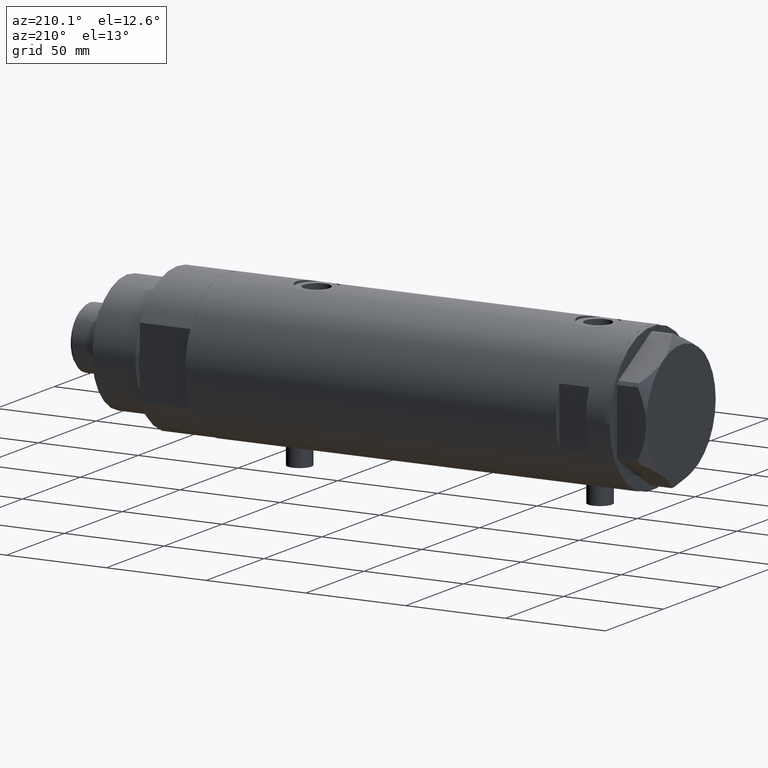
[diagram: clean part render]
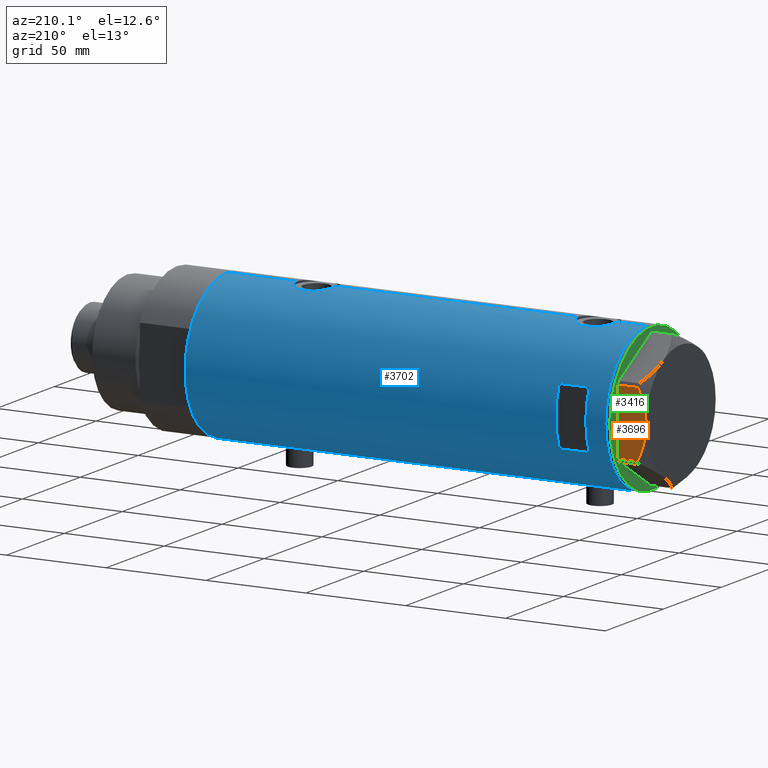
[diagram: same view with three faces highlighted in distinct colors, each labeled with its STEP entity id]
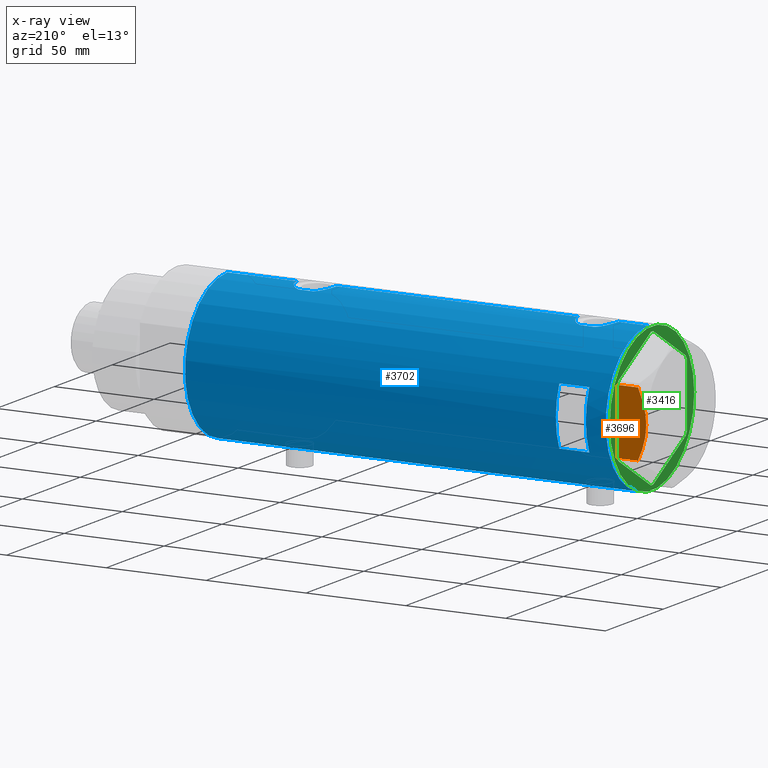
[diagram: x-ray of the same camera — body ghosted, the three highlighted faces saturated]
A machine part, auxiliary view with three faces highlighted in distinct colors.
The next image is the same camera in x-ray (body ghosted, the three faces saturated) — at least one of them is partly hidden behind the body in this view.
Their STEP definitions:

[orange] entity #3696 — the highlighted planar face has unit normal (0, -1, -0).
#174 = ORIENTED_EDGE ( 'NONE', *, *, #3466, .T. ) ;
#234 = VERTEX_POINT ( 'NONE', #631 ) ;
#309 = CARTESIAN_POINT ( 'NONE',  ( 29.99999999999998579, 2.827567415490793934, 14.37523681947611287 ) ) ;
#334 = CARTESIAN_POINT ( 'NONE',  ( 30.00000000000000000, 15.56759648729806145, 10.70591879357994003 ) ) ;
#628 = ORIENTED_EDGE ( 'NONE', *, *, #754, .T. ) ;
#631 = CARTESIAN_POINT ( 'NONE',  ( 30.00000000000000000, 9.013887592422954582E-15, 14.50000000000000000 ) ) ;
#656 = DIRECTION ( 'NONE',  ( -3.004629197474318063E-16, 1.000000000000000000, 0.000000000000000000 ) ) ;
#684 = CARTESIAN_POINT ( 'NONE',  ( 29.99999999999999645, 14.92797448277035066, 10.99622797424085796 ) ) ;
#685 = CARTESIAN_POINT ( 'NONE',  ( 30.00000000000000000, -5.593935073701695515, 14.09487059093540751 ) ) ;
#754 = EDGE_CURVE ( 'NONE', #1558, #2971, #3715, .T. ) ;
#775 = CARTESIAN_POINT ( 'NONE',  ( 30.00000000000000355, -16.20050807568876294, 0.000000000000000000 ) ) ;
#786 = VERTEX_POINT ( 'NONE', #3413 ) ;
#894 = CARTESIAN_POINT ( 'NONE',  ( 30.00000000000000355, -13.64854889245357761, 11.56384586935411107 ) ) ;
#1023 = CARTESIAN_POINT ( 'NONE',  ( 29.99999999999998579, 11.00230860792645871, 12.56933207488872206 ) ) ;
#1311 = CARTESIAN_POINT ( 'NONE',  ( 30.00000000000000355, -10.99748736931233672, 12.55407623651775140 ) ) ;
#1364 = CARTESIAN_POINT ( 'NONE',  ( 29.99999999999999645, 6.973771051792334141, 13.72753822183687866 ) ) ;
#1515 = EDGE_CURVE ( 'NONE', #234, #3805, #3283, .T. ) ;
#1517 = CARTESIAN_POINT ( 'NONE',  ( 30.00000000000000355, -17.32050807568877460, 14.50000000000000000 ) ) ;
#1558 = VERTEX_POINT ( 'NONE', #775 ) ;
#1679 = CARTESIAN_POINT ( 'NONE',  ( 29.99999999999999645, 3.526431665117132574, 14.30125973663612982 ) ) ;
#1699 = EDGE_CURVE ( 'NONE', #786, #234, #3826, .T. ) ;
#1701 = CARTESIAN_POINT ( 'NONE',  ( 29.99999999999999289, 16.20050807568875229, 10.40518423703605322 ) ) ;
#1740 = LINE ( 'NONE', #4116, #2970 ) ;
#1854 = LINE ( 'NONE', #3436, #3645 ) ;
#2032 = CARTESIAN_POINT ( 'NONE',  ( 30.00000000000000000, 1.418661615092703387, 14.47469700449902952 ) ) ;
#2036 = CARTESIAN_POINT ( 'NONE',  ( 30.00000000000000000, -2.830925467268480933, 14.50000000000000355 ) ) ;
#2162 = EDGE_CURVE ( 'NONE', #786, #1558, #1740, .T. ) ;
#2386 = CARTESIAN_POINT ( 'NONE',  ( 29.99999999999999289, 12.97715359595205520, 11.81918444541430979 ) ) ;
#2450 = CARTESIAN_POINT ( 'NONE',  ( 29.99999999999999289, 16.20050807568875229, 10.40518423703605322 ) ) ;
#2461 = CARTESIAN_POINT ( 'NONE',  ( 29.99999999999999289, 16.20050807568875584, 0.000000000000000000 ) ) ;
#2663 = CARTESIAN_POINT ( 'NONE',  ( 29.99999999999999289, -9.655259153795981319, 12.99093232113973251 ) ) ;
#2717 = ORIENTED_EDGE ( 'NONE', *, *, #2162, .T. ) ;
#2752 = ORIENTED_EDGE ( 'NONE', *, *, #1515, .F. ) ;
#2924 = DIRECTION ( 'NONE',  ( 0.000000000000000000, 0.000000000000000000, 1.000000000000000000 ) ) ;
#2970 = VECTOR ( 'NONE', #3123, 1000.000000000000000 ) ;
#2971 = VERTEX_POINT ( 'NONE', #2461 ) ;
#2997 = CARTESIAN_POINT ( 'NONE',  ( 30.00000000000000355, -16.20050807568876650, 10.40518423703603368 ) ) ;
#3022 = CARTESIAN_POINT ( 'NONE',  ( 30.00000000000000355, -17.32050807568877460, 0.000000000000000000 ) ) ;
#3055 = CARTESIAN_POINT ( 'NONE',  ( 29.99999999999998934, 5.607365453019633961, 14.01139032121648320 ) ) ;
#3115 = FACE_OUTER_BOUND ( 'NONE', #4475, .T. ) ;
#3123 = DIRECTION ( 'NONE',  ( 0.000000000000000000, 0.000000000000000000, -1.000000000000000000 ) ) ;
#3174 = PLANE ( 'NONE',  #3356 ) ;
#3283 = B_SPLINE_CURVE_WITH_KNOTS ( 'NONE', 3,
 ( #3403, #4441, #2032, #309, #1679, #3055, #1364, #4110, #1023, #2386, #3767, #684, #334, #1701 ),
 .UNSPECIFIED., .F., .F.,
 ( 4, 2, 2, 2, 2, 2, 4 ),
 ( 0.06183748343640974032, 0.06393495742991756048, 0.06603243142342538063, 0.07022737941044103482, 0.07442232739745667514, 0.07651980139096450917, 0.07861727538447232932 ),
 .UNSPECIFIED. ) ;
#3356 = AXIS2_PLACEMENT_3D ( 'NONE', #1517, #3771, #3386 ) ;
#3386 = DIRECTION ( 'NONE',  ( 3.004629197474318556E-16, -1.000000000000000000, 0.000000000000000000 ) ) ;
#3403 = CARTESIAN_POINT ( 'NONE',  ( 30.00000000000000000, 9.013887592422954582E-15, 14.50000000000000000 ) ) ;
#3413 = CARTESIAN_POINT ( 'NONE',  ( 30.00000000000000355, -16.20050807568876650, 10.40518423703603368 ) ) ;
#3424 = CARTESIAN_POINT ( 'NONE',  ( 30.00000000000000000, 9.013887592422954582E-15, 14.50000000000000000 ) ) ;
#3436 = CARTESIAN_POINT ( 'NONE',  ( 29.99999999999999289, 16.20050807568875584, 14.50000000000000000 ) ) ;
#3455 = ORIENTED_EDGE ( 'NONE', *, *, #1699, .F. ) ;
#3466 = EDGE_CURVE ( 'NONE', #2971, #3805, #1854, .T. ) ;
#3645 = VECTOR ( 'NONE', #2924, 1000.000000000000000 ) ;
#3696 = ADVANCED_FACE ( 'NONE', ( #3115 ), #3174, .F. ) ;
#3715 = LINE ( 'NONE', #3022, #3939 ) ;
#3767 = CARTESIAN_POINT ( 'NONE',  ( 29.99999999999999289, 13.63320717147166761, 11.55272916346385692 ) ) ;
#3768 = CARTESIAN_POINT ( 'NONE',  ( 29.99999999999999645, -8.981118657900115210, 13.19130745470828892 ) ) ;
#3771 = DIRECTION ( 'NONE',  ( -1.000000000000000000, -3.004629197474318556E-16, 0.000000000000000000 ) ) ;
#3805 = VERTEX_POINT ( 'NONE', #2450 ) ;
#3826 = B_SPLINE_CURVE_WITH_KNOTS ( 'NONE', 3,
 ( #2997, #4383, #894, #4113, #1311, #2663, #3768, #685, #2036, #3424 ),
 .UNSPECIFIED., .F., .F.,
 ( 4, 2, 2, 2, 4 ),
 ( 0.04501738275285961655, 0.04922240792374714402, 0.05132492050919090776, 0.05342743309463467843, 0.06183748343640974032 ),
 .UNSPECIFIED. ) ;
#3939 = VECTOR ( 'NONE', #656, 1000.000000000000000 ) ;
#4110 = CARTESIAN_POINT ( 'NONE',  ( 29.99999999999998579, 9.671229349009047738, 13.00645148086949554 ) ) ;
#4113 = CARTESIAN_POINT ( 'NONE',  ( 29.99999999999999645, -11.66725319103953495, 12.31690447555093115 ) ) ;
#4116 = CARTESIAN_POINT ( 'NONE',  ( 30.00000000000000355, -16.20050807568876294, 14.50000000000000000 ) ) ;
#4383 = CARTESIAN_POINT ( 'NONE',  ( 29.99999999999999645, -14.93680064777130845, 11.00564802993686619 ) ) ;
#4441 = CARTESIAN_POINT ( 'NONE',  ( 29.99999999999999645, 0.7060353153488403422, 14.50000000000000355 ) ) ;
#4475 = EDGE_LOOP ( 'NONE', ( #3455, #2717, #628, #174, #2752 ) ) ;

[blue] entity #3702 — the highlighted cylindrical surface (partial cylindrical patch) has radius 36.5 mm, axis along (-1, -0, 0).
#17 = VECTOR ( 'NONE', #2982, 1000.000000000000000 ) ;
#53 = CARTESIAN_POINT ( 'NONE',  ( 36.50000000000000000, 0.000000000000000000, 70.40000000000000568 ) ) ;
#66 = CARTESIAN_POINT ( 'NONE',  ( -36.49297130294515057, 0.8204796224394284021, -62.89068307782267908 ) ) ;
#70 = CARTESIAN_POINT ( 'NONE',  ( 36.50000000000000000, 0.000000000000000000, -70.59999999999999432 ) ) ;
#71 = ORIENTED_EDGE ( 'NONE', *, *, #3156, .T. ) ;
#86 = CARTESIAN_POINT ( 'NONE',  ( -36.40902375114221456, 2.582415566883933256, 75.70478308530312006 ) ) ;
#93 = CARTESIAN_POINT ( 'NONE',  ( 35.40502660484482789, 8.876998817796907915, -65.23098724071236632 ) ) ;
#98 = CARTESIAN_POINT ( 'NONE',  ( 35.72794581931695745, 7.469526493268201506, -53.94660203271736520 ) ) ;
#103 = CARTESIAN_POINT ( 'NONE',  ( 35.29999999999999716, 9.282241108697835585, -105.4000000000000057 ) ) ;
#119 = CARTESIAN_POINT ( 'NONE',  ( 36.50000000000000000, 1.005842003469122004, -70.59999999999999432 ) ) ;
#124 = VERTEX_POINT ( 'NONE', #2236 ) ;
#125 = CARTESIAN_POINT ( 'NONE',  ( 36.50000000000000000, 4.344614706140975428E-19, 90.39999999999999147 ) ) ;
#132 = CARTESIAN_POINT ( 'NONE',  ( -36.44628644024910358, 2.015372769639943495, 75.46971871986416147 ) ) ;
#136 = VERTEX_POINT ( 'NONE', #2307 ) ;
#166 = CARTESIAN_POINT ( 'NONE',  ( 36.26917563968161318, 4.104523505324172206, -69.72215988367474893 ) ) ;
#173 = CARTESIAN_POINT ( 'NONE',  ( 36.50000000000000000, 0.000000000000000000, -105.4000000000000057 ) ) ;
#181 = VERTEX_POINT ( 'NONE', #1266 ) ;
#206 = CARTESIAN_POINT ( 'NONE',  ( 36.41717583764487642, 2.469534783404760514, 90.09348011175671900 ) ) ;
#208 = CARTESIAN_POINT ( 'NONE',  ( -36.05296344941216802, 5.695624845616830356, -71.68154856536759212 ) ) ;
#225 = CARTESIAN_POINT ( 'NONE',  ( -14.49137674618942562, 33.50000000000000000, 80.40000000000003411 ) ) ;
#232 = CARTESIAN_POINT ( 'NONE',  ( -35.96094343308264740, 6.249843792257632202, -68.68912889655432252 ) ) ;
#241 = DIRECTION ( 'NONE',  ( 0.000000000000000000, 4.625929269271492422E-15, 1.000000000000000000 ) ) ;
#253 = CIRCLE ( 'NONE', #2188, 36.50000000000000000 ) ;
#267 = CARTESIAN_POINT ( 'NONE',  ( -36.50000000000000000, 4.469960493350315609E-15, -75.35000000000000853 ) ) ;
#333 = B_SPLINE_CURVE_WITH_KNOTS ( 'NONE', 3,
 ( #781, #3164, #66, #1457, #4220, #4333, #883, #1275, #3314, #2242, #4375, #1972, #2633, #4013, #536, #4308, #3984, #2585, #908, #570, #935, #232, #1616, #1641, #1231, #1933, #208, #978, #2294, #1322, #3677, #597, #2984, #1302, #960, #2316, #3699, #4058, #2677, #2335, #617, #3359, #267 ),
 .UNSPECIFIED., .F., .F.,
 ( 4, 2, 2, 2, 2, 2, 2, 2, 1, 2, 2, 2, 2, 2, 2, 2, 2, 2, 2, 2, 2, 4 ),
 ( 5.683504623013911987E-19, 0.001223527801214120518, 0.001835291701821175356, 0.002447055602428230194, 0.003670583403642342039, 0.004894111204856454317, 0.006117639006070565294, 0.006729402906677638130, 0.007341166807284710966, 0.007952930707891782067, 0.008564694608498856637, 0.009788222409713002309, 0.01101175021092714625, 0.01223527801214129365, 0.01284704191274838730, 0.01345880581335547749, 0.01468233361456966132, 0.01590586141578384169, 0.01651762531639093534, 0.01712938921699802552, 0.01835291701821222324, 0.01957644481942642095 ),
 .UNSPECIFIED. ) ;
#341 = CYLINDRICAL_SURFACE ( 'NONE', #910, 36.50000000000000000 ) ;
#414 = CARTESIAN_POINT ( 'NONE',  ( 36.50000000000000000, 0.000000000000000000, -105.4000000000000057 ) ) ;
#415 = CARTESIAN_POINT ( 'NONE',  ( 36.26917563968160607, 4.104523505324173982, 71.27784011632526529 ) ) ;
#417 = EDGE_CURVE ( 'NONE', #2922, #1665, #3676, .T. ) ;
#420 = ORIENTED_EDGE ( 'NONE', *, *, #901, .F. ) ;
#426 = CARTESIAN_POINT ( 'NONE',  ( 35.72860827204724643, 7.471059959301278752, -67.26525150474407155 ) ) ;
#428 = CARTESIAN_POINT ( 'NONE',  ( 35.29999999999999716, 9.282241108697832033, -56.87978495245235422 ) ) ;
#438 = CARTESIAN_POINT ( 'NONE',  ( -36.35033317675381426, 3.306376218664582645, 76.09229280583950583 ) ) ;
#439 = EDGE_CURVE ( 'NONE', #2019, #2791, #3016, .T. ) ;
#469 = CARTESIAN_POINT ( 'NONE',  ( 36.29420020483473053, 3.877527130731367233, -69.82098974400294367 ) ) ;
#485 = B_SPLINE_CURVE_WITH_KNOTS ( 'NONE', 3,
 ( #428, #2071, #1731, #1794, #98, #746, #2789, #1417, #3170, #4232, #1468, #3153, #1160, #4207, #3883, #4251, #806, #2112, #2768, #3526 ),
 .UNSPECIFIED., .F., .F.,
 ( 4, 2, 2, 2, 2, 2, 2, 2, 2, 4 ),
 ( 1.551583845779545699E-17, 0.002977391289382848218, 0.003721739111728565152, 0.004466086934074281652, 0.005954782578765715519, 0.007443478223457148518, 0.008932173868148582385, 0.009676521690494299319, 0.01042086951284001625, 0.01190956515753145185 ),
 .UNSPECIFIED. ) ;
#495 = CARTESIAN_POINT ( 'NONE',  ( -36.30200038006935870, 3.811959488093746184, 86.36972104836003439 ) ) ;
#518 = CARTESIAN_POINT ( 'NONE',  ( -36.06675137892953131, 5.607935153446980792, 84.16681826008758094 ) ) ;
#523 = VERTEX_POINT ( 'NONE', #1445 ) ;
#529 = ORIENTED_EDGE ( 'NONE', *, *, #3103, .T. ) ;
#536 = CARTESIAN_POINT ( 'NONE',  ( -36.09617453667821252, 5.415318599347968664, -65.97293357327090746 ) ) ;
#558 = EDGE_CURVE ( 'NONE', #673, #3673, #333, .T. ) ;
#566 = CARTESIAN_POINT ( 'NONE',  ( 36.34264078466111414, 3.418717136061404371, 89.81049034040754009 ) ) ;
#570 = CARTESIAN_POINT ( 'NONE',  ( -35.98846897517729815, 6.089479646546500646, -67.67765108453481560 ) ) ;
#577 = CARTESIAN_POINT ( 'NONE',  ( -35.99530513653993324, 6.049346314076207598, 79.77667416964166591 ) ) ;
#593 = CARTESIAN_POINT ( 'NONE',  ( 35.72794581931695035, 7.469526493268199729, 87.05339796728263480 ) ) ;
#597 = CARTESIAN_POINT ( 'NONE',  ( -36.19597718496778072, 4.710322426433910969, -73.22851610762013763 ) ) ;
#604 = VERTEX_POINT ( 'NONE', #950 ) ;
#617 = CARTESIAN_POINT ( 'NONE',  ( -36.49292802938587954, 0.8230716655928912440, -75.30906938753517466 ) ) ;
#623 = ORIENTED_EDGE ( 'NONE', *, *, #2219, .F. ) ;
#639 = CARTESIAN_POINT ( 'NONE',  ( 36.50000000000000000, 0.000000000000000000, -70.59999999999999432 ) ) ;
#655 = DIRECTION ( 'NONE',  ( 1.000000000000000000, 1.776356839400250465E-15, 0.000000000000000000 ) ) ;
#673 = VERTEX_POINT ( 'NONE', #3666 ) ;
#702 = EDGE_CURVE ( 'NONE', #2662, #2922, #1519, .T. ) ;
#733 = DIRECTION ( 'NONE',  ( 0.000000000000000000, 0.000000000000000000, 1.000000000000000000 ) ) ;
#736 = CARTESIAN_POINT ( 'NONE',  ( -36.19597718496777361, 4.710322426433901200, 77.27148389237981974 ) ) ;
#746 = CARTESIAN_POINT ( 'NONE',  ( 35.79715675463678792, 7.130463293899339305, -53.58444415894006596 ) ) ;
#774 = DIRECTION ( 'NONE',  ( 0.000000000000000000, 0.000000000000000000, 1.000000000000000000 ) ) ;
#781 = CARTESIAN_POINT ( 'NONE',  ( -36.50000000000000000, -5.849986204104554638E-16, -62.85000000000000142 ) ) ;
#801 = CARTESIAN_POINT ( 'NONE',  ( 36.36225053217121683, 3.177096004138046048, -70.08516024475980544 ) ) ;
#806 = CARTESIAN_POINT ( 'NONE',  ( 36.45954139109320380, 1.735915671103592794, -50.74863218852989633 ) ) ;
#838 = CARTESIAN_POINT ( 'NONE',  ( 36.49999999999999289, 0.4961820988516178477, 90.39999999999997726 ) ) ;
#843 = CARTESIAN_POINT ( 'NONE',  ( 35.34894515018992678, 9.096104616284845790, -64.78464083466536749 ) ) ;
#851 = ORIENTED_EDGE ( 'NONE', *, *, #4268, .F. ) ;
#883 = CARTESIAN_POINT ( 'NONE',  ( -36.43371204571226230, 2.206934156026287397, -63.24902718329002482 ) ) ;
#901 = EDGE_CURVE ( 'NONE', #604, #1313, #485, .T. ) ;
#908 = CARTESIAN_POINT ( 'NONE',  ( -35.99700617875953412, 6.038972911021587286, -67.47666814201679131 ) ) ;
#910 = AXIS2_PLACEMENT_3D ( 'NONE', #3363, #4418, #1708 ) ;
#929 = CARTESIAN_POINT ( 'NONE',  ( 35.52347503888661606, 8.410566959990463332, 85.89953967259343415 ) ) ;
#935 = CARTESIAN_POINT ( 'NONE',  ( -35.96793274302674348, 6.210029014836887740, -68.28305762320682959 ) ) ;
#950 = CARTESIAN_POINT ( 'NONE',  ( 35.29999999999999716, 9.282241108697832033, -56.87978495245235422 ) ) ;
#960 = CARTESIAN_POINT ( 'NONE',  ( -36.35033317675379294, 3.306376218664579980, -74.40770719416053680 ) ) ;
#978 = CARTESIAN_POINT ( 'NONE',  ( -36.06690560274406465, 5.606949625760679901, -71.86885923958934086 ) ) ;
#986 = CARTESIAN_POINT ( 'NONE',  ( -36.03936508729894683, 5.782103729777506196, 83.79870532603797528 ) ) ;
#1031 = EDGE_LOOP ( 'NONE', ( #623, #4368, #2096, #851 ) ) ;
#1046 = CARTESIAN_POINT ( 'NONE',  ( 36.18948008481302026, 4.772042575486197258, 71.59822368756843503 ) ) ;
#1089 = LINE ( 'NONE', #414, #3554 ) ;
#1101 = DIRECTION ( 'NONE',  ( -0.000000000000000000, -0.000000000000000000, -1.000000000000000000 ) ) ;
#1118 = ORIENTED_EDGE ( 'NONE', *, *, #439, .F. ) ;
#1123 = B_SPLINE_CURVE_WITH_KNOTS ( 'NONE', 3,
 ( #3147, #1403, #2465, #2737, #2124, #3513, #415, #1046, #1454, #2880, #4327, #3911, #2511, #4258, #1170, #2189, #3580, #2215 ),
 .UNSPECIFIED., .F., .F.,
 ( 4, 2, 2, 2, 2, 2, 2, 2, 4 ),
 ( -8.673617379884035472E-19, 0.002973648994175663411, 0.003717061242719586420, 0.004460473491263509428, 0.005947297988351372793, 0.007434122485439235289, 0.008920946982527096919, 0.01040777147961496202, 0.01189459597670282365 ),
 .UNSPECIFIED. ) ;
#1152 = LINE ( 'NONE', #2842, #1967 ) ;
#1157 = CARTESIAN_POINT ( 'NONE',  ( -36.39638105034455862, 2.774378062517170562, 87.01543332699102962 ) ) ;
#1160 = CARTESIAN_POINT ( 'NONE',  ( 36.34264078466110703, 3.418717136061401263, -51.18950965959248833 ) ) ;
#1170 = CARTESIAN_POINT ( 'NONE',  ( 35.52737867031127195, 8.373910777960903218, 74.91139643282933491 ) ) ;
#1173 = DIRECTION ( 'NONE',  ( -0.000000000000000000, -0.000000000000000000, -1.000000000000000000 ) ) ;
#1183 = CARTESIAN_POINT ( 'NONE',  ( -36.50000000000000000, 1.407447864834978200E-15, 87.65000000000000568 ) ) ;
#1190 = CARTESIAN_POINT ( 'NONE',  ( -36.50000000000000000, 1.407447864834978200E-15, 87.65000000000000568 ) ) ;
#1205 = CARTESIAN_POINT ( 'NONE',  ( -36.49292802938586533, 0.8230716655928910219, 75.19093061246483956 ) ) ;
#1228 = DIRECTION ( 'NONE',  ( 0.000000000000000000, 0.000000000000000000, 1.000000000000000000 ) ) ;
#1231 = CARTESIAN_POINT ( 'NONE',  ( -35.99530513653992614, 6.049346314076206710, -70.72332583035836251 ) ) ;
#1250 = ORIENTED_EDGE ( 'NONE', *, *, #3829, .F. ) ;
#1266 = CARTESIAN_POINT ( 'NONE',  ( -36.50000000000000000, 4.469960816887837641E-15, -105.4000000000000057 ) ) ;
#1273 = CARTESIAN_POINT ( 'NONE',  ( 35.39804469700249001, 8.909380959553013568, 85.05053164482841055 ) ) ;
#1275 = CARTESIAN_POINT ( 'NONE',  ( -36.39638105034455151, 2.774378062517169674, -63.48456667300896328 ) ) ;
#1284 = CARTESIAN_POINT ( 'NONE',  ( -36.50000000000000000, 4.469960493350315609E-15, -75.35000000000000853 ) ) ;
#1286 = VECTOR ( 'NONE', #2151, 1000.000000000000000 ) ;
#1291 = ORIENTED_EDGE ( 'NONE', *, *, #3726, .F. ) ;
#1302 = CARTESIAN_POINT ( 'NONE',  ( -36.30181775639987052, 3.813582387016787312, -74.06836057574437859 ) ) ;
#1313 = VERTEX_POINT ( 'NONE', #3922 ) ;
#1322 = CARTESIAN_POINT ( 'NONE',  ( -36.11206433103226487, 5.308658295084045520, -72.40484648040975912 ) ) ;
#1395 = DIRECTION ( 'NONE',  ( 1.000000000000000000, 0.000000000000000000, 0.000000000000000000 ) ) ;
#1396 = VERTEX_POINT ( 'NONE', #2993 ) ;
#1403 = CARTESIAN_POINT ( 'NONE',  ( 36.49999999999999289, 1.005842003469121781, 70.40000000000001990 ) ) ;
#1409 = LINE ( 'NONE', #2489, #1286 ) ;
#1415 = ORIENTED_EDGE ( 'NONE', *, *, #1542, .F. ) ;
#1417 = CARTESIAN_POINT ( 'NONE',  ( 35.93435287561197811, 6.411571491280765756, -52.91011355077158385 ) ) ;
#1445 = CARTESIAN_POINT ( 'NONE',  ( 14.49137674618942384, 33.50000000000000000, 80.40000000000003411 ) ) ;
#1454 = CARTESIAN_POINT ( 'NONE',  ( 36.13018480315371761, 5.199168368309160293, 71.84353501791950691 ) ) ;
#1457 = CARTESIAN_POINT ( 'NONE',  ( -36.47290054070997201, 1.420408912806972124, -63.01013018339985194 ) ) ;
#1463 = CARTESIAN_POINT ( 'NONE',  ( 36.34070350304396868, 3.414301401755541754, -70.00236217375906733 ) ) ;
#1468 = CARTESIAN_POINT ( 'NONE',  ( 36.18937351723702989, 4.773052864917637805, -51.79864006881157934 ) ) ;
#1474 = CIRCLE ( 'NONE', #3929, 36.50000000000000000 ) ;
#1475 = DIRECTION ( 'NONE',  ( 0.000000000000000000, 0.000000000000000000, 1.000000000000000000 ) ) ;
#1503 = LINE ( 'NONE', #2532, #2416 ) ;
#1519 = LINE ( 'NONE', #173, #4014 ) ;
#1524 = LINE ( 'NONE', #2912, #4285 ) ;
#1527 = CARTESIAN_POINT ( 'NONE',  ( -36.46598788992681506, 1.625721481788709344, 75.35127953286161073 ) ) ;
#1542 = EDGE_CURVE ( 'NONE', #1313, #3014, #1089, .T. ) ;
#1559 = CARTESIAN_POINT ( 'NONE',  ( 36.13018480315371761, 5.199168368309158517, -69.15646498208050730 ) ) ;
#1566 = DIRECTION ( 'NONE',  ( 0.000000000000000000, 0.000000000000000000, 1.000000000000000000 ) ) ;
#1584 = CARTESIAN_POINT ( 'NONE',  ( -35.96793274302675059, 6.210029014836887740, 82.21694237679317041 ) ) ;
#1594 = CARTESIAN_POINT ( 'NONE',  ( 35.29999999999999716, 9.282241108697832033, 84.12021504754764578 ) ) ;
#1597 = CARTESIAN_POINT ( 'NONE',  ( 36.50000000000000000, 4.344614706140975428E-19, 90.39999999999999147 ) ) ;
#1616 = CARTESIAN_POINT ( 'NONE',  ( -35.96088929326157313, 6.250155299092686967, -69.50610494763246550 ) ) ;
#1641 = CARTESIAN_POINT ( 'NONE',  ( -35.96805604460922012, 6.209309709790233889, -69.92112758268173422 ) ) ;
#1643 = DIRECTION ( 'NONE',  ( -0.000000000000000000, -0.000000000000000000, -1.000000000000000000 ) ) ;
#1646 = CARTESIAN_POINT ( 'NONE',  ( -36.05296344941213960, 5.695624845616829468, 78.81845143463239367 ) ) ;
#1665 = VERTEX_POINT ( 'NONE', #3101 ) ;
#1708 = DIRECTION ( 'NONE',  ( 1.000000000000000000, 0.000000000000000000, 0.000000000000000000 ) ) ;
#1725 = ORIENTED_EDGE ( 'NONE', *, *, #4222, .T. ) ;
#1731 = CARTESIAN_POINT ( 'NONE',  ( 35.52347503888660896, 8.410566959990461555, -55.10046032740658006 ) ) ;
#1747 = EDGE_CURVE ( 'NONE', #604, #1665, #2161, .T. ) ;
#1782 = DIRECTION ( 'NONE',  ( 1.000000000000000000, 0.000000000000000000, 0.000000000000000000 ) ) ;
#1791 = CARTESIAN_POINT ( 'NONE',  ( -36.47290054070997911, 1.420408912806973678, 87.48986981660016227 ) ) ;
#1794 = CARTESIAN_POINT ( 'NONE',  ( 35.69321149401849880, 7.633476302278300096, -54.13536927833557399 ) ) ;
#1806 = CARTESIAN_POINT ( 'NONE',  ( -36.39522946636253664, 2.769519034821243508, 75.79336076268727140 ) ) ;
#1812 = CARTESIAN_POINT ( 'NONE',  ( 35.52737867031126484, 8.373910777960910323, -66.08860356717067930 ) ) ;
#1827 = DIRECTION ( 'NONE',  ( 0.000000000000000000, 0.000000000000000000, 1.000000000000000000 ) ) ;
#1840 = CARTESIAN_POINT ( 'NONE',  ( 36.00287854058831272, 6.017835360302997039, -68.60188117181725431 ) ) ;
#1851 = LINE ( 'NONE', #3675, #17 ) ;
#1880 = CARTESIAN_POINT ( 'NONE',  ( 36.45954139109321090, 1.735915671103594349, 90.25136781147007525 ) ) ;
#1931 = CARTESIAN_POINT ( 'NONE',  ( 36.40008489419980720, 2.709263960908030899, 90.02918104596392368 ) ) ;
#1933 = CARTESIAN_POINT ( 'NONE',  ( -36.01524716445114649, 5.931039972055518916, -71.11330731864657650 ) ) ;
#1949 = CARTESIAN_POINT ( 'NONE',  ( 35.69321149401851301, 7.633476302278301873, 86.86463072166442601 ) ) ;
#1959 = CARTESIAN_POINT ( 'NONE',  ( -36.11206433103227909, 5.308658295084049072, 78.09515351959024088 ) ) ;
#1967 = VECTOR ( 'NONE', #1827, 1000.000000000000000 ) ;
#1972 = CARTESIAN_POINT ( 'NONE',  ( -36.19624103943463211, 4.708090268046848159, -64.96938778553862903 ) ) ;
#2019 = VERTEX_POINT ( 'NONE', #1190 ) ;
#2041 = FACE_OUTER_BOUND ( 'NONE', #4299, .T. ) ;
#2071 = CARTESIAN_POINT ( 'NONE',  ( 35.39804469700249712, 8.909380959553015344, -55.94946835517159656 ) ) ;
#2096 = ORIENTED_EDGE ( 'NONE', *, *, #2432, .F. ) ;
#2112 = CARTESIAN_POINT ( 'NONE',  ( 36.48988646280793802, 0.9921857666168130141, -50.63671884865574668 ) ) ;
#2124 = CARTESIAN_POINT ( 'NONE',  ( 36.34070350304396158, 3.414301401755541310, 70.99763782624093267 ) ) ;
#2151 = DIRECTION ( 'NONE',  ( 0.000000000000000000, 0.000000000000000000, 1.000000000000000000 ) ) ;
#2152 = CARTESIAN_POINT ( 'NONE',  ( -36.36587679577596077, 3.131448301962866054, 75.98717534426381803 ) ) ;
#2154 = ORIENTED_EDGE ( 'NONE', *, *, #4334, .T. ) ;
#2155 = CARTESIAN_POINT ( 'NONE',  ( 36.45853166336080164, 1.985123042546143024, -70.45162670417735740 ) ) ;
#2161 = LINE ( 'NONE', #103, #2325 ) ;
#2188 = AXIS2_PLACEMENT_3D ( 'NONE', #2684, #241, #2613 ) ;
#2189 = CARTESIAN_POINT ( 'NONE',  ( 35.40502660484482078, 8.876998817796904362, 75.76901275928764790 ) ) ;
#2205 = CARTESIAN_POINT ( 'NONE',  ( -36.49297130294515057, 0.8204796224394288462, 87.60931692217734224 ) ) ;
#2215 = CARTESIAN_POINT ( 'NONE',  ( 35.29999999999999716, 9.282241108697832033, 76.67978495245235138 ) ) ;
#2219 = EDGE_CURVE ( 'NONE', #3158, #124, #1152, .T. ) ;
#2228 = CARTESIAN_POINT ( 'NONE',  ( -36.11199073531170001, 5.309184630646988090, 84.70412840766836382 ) ) ;
#2236 = CARTESIAN_POINT ( 'NONE',  ( -14.49137674618942739, 33.50000000000000000, 95.40000000000001990 ) ) ;
#2242 = CARTESIAN_POINT ( 'NONE',  ( -36.30200038006935870, 3.811959488093740411, -64.13027895163995140 ) ) ;
#2248 = CARTESIAN_POINT ( 'NONE',  ( -36.01679413914728656, 5.919813138266330377, 83.41499691047036436 ) ) ;
#2264 = CARTESIAN_POINT ( 'NONE',  ( 36.18937351723702989, 4.773052864917641358, 89.20135993118843487 ) ) ;
#2266 = CIRCLE ( 'NONE', #3360, 36.50000000000000000 ) ;
#2274 = CARTESIAN_POINT ( 'NONE',  ( -35.96088929326157313, 6.250155299092687855, 80.99389505236753450 ) ) ;
#2294 = CARTESIAN_POINT ( 'NONE',  ( -36.09643313249888763, 5.413601294342280212, -72.23007773391850606 ) ) ;
#2301 = CARTESIAN_POINT ( 'NONE',  ( -36.06690560274405044, 5.606949625760678124, 78.63114076041068756 ) ) ;
#2303 = B_SPLINE_CURVE_WITH_KNOTS ( 'NONE', 3,
 ( #1594, #1273, #929, #1949, #593, #2955, #3335, #4008, #3311, #4371, #2264, #3652, #566, #1931, #206, #3315, #1880, #2587, #838, #1597 ),
 .UNSPECIFIED., .F., .F.,
 ( 4, 2, 2, 2, 2, 2, 2, 2, 2, 4 ),
 ( 1.551583845779545699E-17, 0.002977391289382861662, 0.003721739111728563851, 0.004466086934074266906, 0.005954782578765698171, 0.007443478223457130304, 0.008932173868148563303, 0.009676521690494287176, 0.01042086951284001105, 0.01190956515753145012 ),
 .UNSPECIFIED. ) ;
#2307 = CARTESIAN_POINT ( 'NONE',  ( 14.49137674618942739, 33.50000000000000000, 95.40000000000001990 ) ) ;
#2311 = VERTEX_POINT ( 'NONE', #2882 ) ;
#2313 = ORIENTED_EDGE ( 'NONE', *, *, #702, .F. ) ;
#2316 = CARTESIAN_POINT ( 'NONE',  ( -36.36587679577596077, 3.131448301962866054, -74.51282465573619618 ) ) ;
#2325 = VECTOR ( 'NONE', #1101, 1000.000000000000000 ) ;
#2335 = CARTESIAN_POINT ( 'NONE',  ( -36.46598788992681506, 1.625721481788708900, -75.14872046713838927 ) ) ;
#2367 = FACE_BOUND ( 'NONE', #1031, .T. ) ;
#2416 = VECTOR ( 'NONE', #1228, 1000.000000000000000 ) ;
#2432 = EDGE_CURVE ( 'NONE', #136, #523, #3657, .T. ) ;
#2465 = CARTESIAN_POINT ( 'NONE',  ( 36.45853166336080164, 1.985123042546143024, 70.54837329582262839 ) ) ;
#2470 = CARTESIAN_POINT ( 'NONE',  ( -36.50000000000000000, 0.4083036190459313763, 75.14999999999996305 ) ) ;
#2489 = CARTESIAN_POINT ( 'NONE',  ( -36.50000000000000000, 4.469960816887837641E-15, -105.4000000000000057 ) ) ;
#2511 = CARTESIAN_POINT ( 'NONE',  ( 35.72860827204724643, 7.471059959301278752, 73.73474849525591424 ) ) ;
#2518 = CARTESIAN_POINT ( 'NONE',  ( -36.36688032967141027, 3.133094607697489931, 86.82336432637509915 ) ) ;
#2532 = CARTESIAN_POINT ( 'NONE',  ( -36.50000000000000000, 4.469960816887837641E-15, -105.4000000000000057 ) ) ;
#2585 = CARTESIAN_POINT ( 'NONE',  ( -36.01679413914727235, 5.919813138266325048, -67.08500308952962143 ) ) ;
#2587 = CARTESIAN_POINT ( 'NONE',  ( 36.48988646280794512, 0.9921857666168150125, 90.36328115134425332 ) ) ;
#2612 = CARTESIAN_POINT ( 'NONE',  ( -35.96094343308266161, 6.249843792257633979, 81.81087110344569169 ) ) ;
#2613 = DIRECTION ( 'NONE',  ( 0.000000000000000000, 1.000000000000000000, -4.562560375171875891E-15 ) ) ;
#2633 = CARTESIAN_POINT ( 'NONE',  ( -36.16126303108063667, 4.966520032693295228, -65.28358772254718190 ) ) ;
#2642 = CARTESIAN_POINT ( 'NONE',  ( -35.98846897517731236, 6.089479646546502423, 82.82234891546522704 ) ) ;
#2662 = VERTEX_POINT ( 'NONE', #2931 ) ;
#2677 = CARTESIAN_POINT ( 'NONE',  ( -36.44628644024910358, 2.015372769639943051, -75.03028128013583853 ) ) ;
#2684 = CARTESIAN_POINT ( 'NONE',  ( 0.000000000000000000, 0.000000000000000000, 80.40000000000017621 ) ) ;
#2711 = ORIENTED_EDGE ( 'NONE', *, *, #417, .F. ) ;
#2737 = CARTESIAN_POINT ( 'NONE',  ( 36.36225053217120262, 3.177096004138046048, 70.91483975524022298 ) ) ;
#2768 = CARTESIAN_POINT ( 'NONE',  ( 36.49999999999999289, 0.4961820988516180142, -50.59999999999998721 ) ) ;
#2783 = CARTESIAN_POINT ( 'NONE',  ( 36.50000000000000000, 0.000000000000000000, 105.4000000000000057 ) ) ;
#2789 = CARTESIAN_POINT ( 'NONE',  ( 35.83170458557578542, 6.955065627744197343, -53.41058328087536466 ) ) ;
#2791 = VERTEX_POINT ( 'NONE', #4238 ) ;
#2811 = CARTESIAN_POINT ( 'NONE',  ( 0.000000000000000000, 0.000000000000000000, 105.4000000000000057 ) ) ;
#2814 = VECTOR ( 'NONE', #1643, 1000.000000000000000 ) ;
#2826 = CARTESIAN_POINT ( 'NONE',  ( -36.46462099658055678, 1.618684470865506375, 87.44024397024844575 ) ) ;
#2831 = VECTOR ( 'NONE', #733, 1000.000000000000000 ) ;
#2842 = CARTESIAN_POINT ( 'NONE',  ( -14.49137674618942562, 33.50000000000000000, -105.4000000000000057 ) ) ;
#2865 = CARTESIAN_POINT ( 'NONE',  ( 35.93456089024233790, 6.410413305453382726, -68.29085963204144605 ) ) ;
#2880 = CARTESIAN_POINT ( 'NONE',  ( 36.00287854058830561, 6.017835360302999703, 72.39811882818277411 ) ) ;
#2882 = CARTESIAN_POINT ( 'NONE',  ( 35.29999999999999716, 9.282241108697832033, 84.12021504754764578 ) ) ;
#2891 = CARTESIAN_POINT ( 'NONE',  ( -36.19624103943463922, 4.708090268046847271, 85.53061221446137097 ) ) ;
#2912 = CARTESIAN_POINT ( 'NONE',  ( 35.29999999999999716, 9.282241108697835585, -105.4000000000000057 ) ) ;
#2922 = VERTEX_POINT ( 'NONE', #639 ) ;
#2923 = CARTESIAN_POINT ( 'NONE',  ( -36.09617453667821252, 5.415318599347968664, 84.52706642672910675 ) ) ;
#2931 = CARTESIAN_POINT ( 'NONE',  ( 36.50000000000000000, 0.000000000000000000, -105.4000000000000057 ) ) ;
#2955 = CARTESIAN_POINT ( 'NONE',  ( 35.79715675463678792, 7.130463293899335753, 87.41555584105994114 ) ) ;
#2964 = CARTESIAN_POINT ( 'NONE',  ( -36.01524716445113938, 5.931039972055517140, 79.38669268135345192 ) ) ;
#2982 = DIRECTION ( 'NONE',  ( 0.000000000000000000, 0.000000000000000000, 1.000000000000000000 ) ) ;
#2984 = CARTESIAN_POINT ( 'NONE',  ( -36.26695135241003953, 4.128455078791312793, -73.81037591644739848 ) ) ;
#2993 = CARTESIAN_POINT ( 'NONE',  ( -36.50000000000000000, 4.469960816887837641E-15, 105.4000000000000057 ) ) ;
#3014 = VERTEX_POINT ( 'NONE', #53 ) ;
#3016 = B_SPLINE_CURVE_WITH_KNOTS ( 'NONE', 3,
 ( #1183, #4249, #2205, #1791, #2826, #3596, #3616, #1157, #2518, #495, #3237, #2891, #3951, #2228, #2923, #518, #986, #2248, #3637, #2642, #1584, #2612, #2274, #3366, #577, #2964, #1646, #2301, #4042, #1959, #3342, #736, #4281, #3536, #438, #2152, #1806, #86, #132, #1527, #1205, #2470, #4244 ),
 .UNSPECIFIED., .F., .F.,
 ( 4, 2, 2, 2, 2, 2, 2, 2, 1, 2, 2, 2, 2, 2, 2, 2, 2, 2, 2, 2, 2, 4 ),
 ( 1.367394070233553059E-18, 0.001223527801214184920, 0.001835291701821280957, 0.002447055602428376345, 0.003670583403642568420, 0.004894111204856760496, 0.006117639006070953005, 0.006729402906678031912, 0.007341166807285110819, 0.007952930707892187992, 0.008564694608499267767, 0.009788222409713425581, 0.01101175021092758340, 0.01223527801214174121, 0.01284704191274879843, 0.01345880581335585913, 0.01468233361456997531, 0.01590586141578409149, 0.01651762531639115392, 0.01712938921699821287, 0.01835291701821231691, 0.01957644481942642095 ),
 .UNSPECIFIED. ) ;
#3090 = CARTESIAN_POINT ( 'NONE',  ( 0.000000000000000000, 0.000000000000000000, -105.4000000000000057 ) ) ;
#3093 = EDGE_CURVE ( 'NONE', #2311, #3210, #1524, .T. ) ;
#3101 = CARTESIAN_POINT ( 'NONE',  ( 35.29999999999999716, 9.282241108697832033, -64.32021504754764862 ) ) ;
#3103 = EDGE_CURVE ( 'NONE', #673, #2791, #1503, .T. ) ;
#3104 = ORIENTED_EDGE ( 'NONE', *, *, #4144, .F. ) ;
#3147 = CARTESIAN_POINT ( 'NONE',  ( 36.50000000000000000, 0.000000000000000000, 70.40000000000000568 ) ) ;
#3153 = CARTESIAN_POINT ( 'NONE',  ( 36.29611582693039651, 3.878758190381166759, -51.36955010900450702 ) ) ;
#3156 = EDGE_CURVE ( 'NONE', #2019, #1396, #1851, .T. ) ;
#3158 = VERTEX_POINT ( 'NONE', #225 ) ;
#3164 = CARTESIAN_POINT ( 'NONE',  ( -36.50000000000000000, 0.4137727629436734333, -62.84999999999998721 ) ) ;
#3170 = CARTESIAN_POINT ( 'NONE',  ( 36.00145998247696610, 6.026272765084655703, -52.60449611787613122 ) ) ;
#3177 = EDGE_CURVE ( 'NONE', #2311, #3858, #2303, .T. ) ;
#3210 = VERTEX_POINT ( 'NONE', #4377 ) ;
#3237 = CARTESIAN_POINT ( 'NONE',  ( -36.26643311080165688, 4.132772529026634167, 86.10619405269881099 ) ) ;
#3263 = CARTESIAN_POINT ( 'NONE',  ( 36.18948008481303447, 4.772042575486197258, -69.40177631243156497 ) ) ;
#3311 = CARTESIAN_POINT ( 'NONE',  ( 36.00145998247696610, 6.026272765084661032, 88.39550388212386167 ) ) ;
#3314 = CARTESIAN_POINT ( 'NONE',  ( -36.36688032967140316, 3.133094607697481493, -63.67663567362490085 ) ) ;
#3315 = CARTESIAN_POINT ( 'NONE',  ( 36.44688397185922923, 1.983417953489138297, 90.20449957648254724 ) ) ;
#3335 = CARTESIAN_POINT ( 'NONE',  ( 35.83170458557578542, 6.955065627744196455, 87.58941671912465665 ) ) ;
#3339 = CARTESIAN_POINT ( 'NONE',  ( 14.49137674618942562, 33.50000000000000000, -105.4000000000000057 ) ) ;
#3342 = CARTESIAN_POINT ( 'NONE',  ( -36.16083474549354548, 4.969527450313384165, 77.58794680877252858 ) ) ;
#3348 = ORIENTED_EDGE ( 'NONE', *, *, #3177, .F. ) ;
#3359 = CARTESIAN_POINT ( 'NONE',  ( -36.50000000000000711, 0.4083036190459274350, -75.35000000000002274 ) ) ;
#3360 = AXIS2_PLACEMENT_3D ( 'NONE', #4121, #3802, #655 ) ;
#3363 = CARTESIAN_POINT ( 'NONE',  ( 0.000000000000000000, 0.000000000000000000, -105.4000000000000057 ) ) ;
#3366 = CARTESIAN_POINT ( 'NONE',  ( -35.96805604460922012, 6.209309709790233889, 80.57887241731827999 ) ) ;
#3392 = ORIENTED_EDGE ( 'NONE', *, *, #1747, .T. ) ;
#3454 = LINE ( 'NONE', #3815, #2831 ) ;
#3513 = CARTESIAN_POINT ( 'NONE',  ( 36.29420020483469500, 3.877527130731365901, 71.17901025599704212 ) ) ;
#3526 = CARTESIAN_POINT ( 'NONE',  ( 36.50000000000000000, 4.344609657431182014E-19, -50.60000000000000853 ) ) ;
#3536 = CARTESIAN_POINT ( 'NONE',  ( -36.30181775639988473, 3.813582387016785535, 76.43163942425562141 ) ) ;
#3543 = CARTESIAN_POINT ( 'NONE',  ( 35.79766710091575987, 7.135341284989892507, -67.62350520560906375 ) ) ;
#3554 = VECTOR ( 'NONE', #1475, 1000.000000000000000 ) ;
#3574 = CIRCLE ( 'NONE', #4155, 36.50000000000000000 ) ;
#3580 = CARTESIAN_POINT ( 'NONE',  ( 35.34894515018993388, 9.096104616284849342, 76.21535916533458987 ) ) ;
#3589 = EDGE_CURVE ( 'NONE', #523, #3158, #253, .T. ) ;
#3596 = CARTESIAN_POINT ( 'NONE',  ( -36.44504802628534890, 2.011764947064737186, 87.32093644908518115 ) ) ;
#3616 = CARTESIAN_POINT ( 'NONE',  ( -36.43371204571226940, 2.206934156026287397, 87.25097281670997518 ) ) ;
#3637 = CARTESIAN_POINT ( 'NONE',  ( -35.99700617875953412, 6.038972911021586398, 83.02333185798322290 ) ) ;
#3652 = CARTESIAN_POINT ( 'NONE',  ( 36.29611582693039651, 3.878758190381167648, 89.63044989099550719 ) ) ;
#3657 = LINE ( 'NONE', #3339, #2814 ) ;
#3666 = CARTESIAN_POINT ( 'NONE',  ( -36.50000000000000000, -5.849986204104554638E-16, -62.85000000000000142 ) ) ;
#3673 = VERTEX_POINT ( 'NONE', #1284 ) ;
#3675 = CARTESIAN_POINT ( 'NONE',  ( -36.50000000000000000, 4.469960816887837641E-15, -105.4000000000000057 ) ) ;
#3676 = B_SPLINE_CURVE_WITH_KNOTS ( 'NONE', 3,
 ( #70, #119, #2155, #801, #1463, #469, #166, #3263, #1559, #1840, #2865, #3543, #426, #3926, #1812, #93, #843, #4265 ),
 .UNSPECIFIED., .F., .F.,
 ( 4, 2, 2, 2, 2, 2, 2, 2, 4 ),
 ( -1.084202172485504434E-18, 0.002973648994175745811, 0.003717061242719678360, 0.004460473491263610910, 0.005947297988351454325, 0.007434122485439297739, 0.008920946982527140287, 0.01040777147961498283, 0.01189459597670282365 ),
 .UNSPECIFIED. ) ;
#3677 = CARTESIAN_POINT ( 'NONE',  ( -36.16083474549354548, 4.969527450313385053, -72.91205319122752826 ) ) ;
#3688 = ORIENTED_EDGE ( 'NONE', *, *, #3093, .T. ) ;
#3699 = CARTESIAN_POINT ( 'NONE',  ( -36.39522946636253664, 2.769519034821244396, -74.70663923731272860 ) ) ;
#3702 = ADVANCED_FACE ( 'NONE', ( #2367, #2041 ), #341, .T. ) ;
#3726 = EDGE_CURVE ( 'NONE', #3858, #3756, #3454, .T. ) ;
#3756 = VERTEX_POINT ( 'NONE', #2783 ) ;
#3802 = DIRECTION ( 'NONE',  ( -0.000000000000000000, -0.000000000000000000, -1.000000000000000000 ) ) ;
#3815 = CARTESIAN_POINT ( 'NONE',  ( 36.50000000000000000, 0.000000000000000000, -105.4000000000000057 ) ) ;
#3829 = EDGE_CURVE ( 'NONE', #3756, #1396, #1474, .T. ) ;
#3858 = VERTEX_POINT ( 'NONE', #125 ) ;
#3883 = CARTESIAN_POINT ( 'NONE',  ( 36.41717583764486221, 2.469534783404756073, -50.90651988824328100 ) ) ;
#3911 = CARTESIAN_POINT ( 'NONE',  ( 35.79766710091575987, 7.135341284989890731, 73.37649479439095046 ) ) ;
#3922 = CARTESIAN_POINT ( 'NONE',  ( 36.50000000000000000, 4.344609657431182014E-19, -50.60000000000000853 ) ) ;
#3926 = CARTESIAN_POINT ( 'NONE',  ( 35.59366931936804690, 8.089554397885864390, -66.49927319087814226 ) ) ;
#3929 = AXIS2_PLACEMENT_3D ( 'NONE', #2811, #774, #1782 ) ;
#3951 = CARTESIAN_POINT ( 'NONE',  ( -36.16126303108063667, 4.966520032693296116, 85.21641227745284652 ) ) ;
#3952 = ORIENTED_EDGE ( 'NONE', *, *, #558, .F. ) ;
#3984 = CARTESIAN_POINT ( 'NONE',  ( -36.03936508729894683, 5.782103729777504419, -66.70129467396202472 ) ) ;
#4008 = CARTESIAN_POINT ( 'NONE',  ( 35.93435287561198521, 6.411571491280765756, 88.08988644922843037 ) ) ;
#4013 = CARTESIAN_POINT ( 'NONE',  ( -36.11199073531172132, 5.309184630646989866, -65.79587159233167881 ) ) ;
#4014 = VECTOR ( 'NONE', #1566, 1000.000000000000000 ) ;
#4042 = CARTESIAN_POINT ( 'NONE',  ( -36.09643313249890184, 5.413601294342284653, 78.26992226608150816 ) ) ;
#4058 = CARTESIAN_POINT ( 'NONE',  ( -36.40902375114221456, 2.582415566883933256, -74.79521691469689415 ) ) ;
#4121 = CARTESIAN_POINT ( 'NONE',  ( 0.000000000000000000, 0.000000000000000000, 95.40000000000001990 ) ) ;
#4144 = EDGE_CURVE ( 'NONE', #3014, #3210, #1123, .T. ) ;
#4155 = AXIS2_PLACEMENT_3D ( 'NONE', #3090, #4476, #1395 ) ;
#4207 = CARTESIAN_POINT ( 'NONE',  ( 36.40008489419981430, 2.709263960908028679, -50.97081895403610474 ) ) ;
#4220 = CARTESIAN_POINT ( 'NONE',  ( -36.46462099658054967, 1.618684470865504821, -63.05975602975154004 ) ) ;
#4222 = EDGE_CURVE ( 'NONE', #181, #3673, #1409, .T. ) ;
#4232 = CARTESIAN_POINT ( 'NONE',  ( 36.12877841835538106, 5.208882251161921495, -52.04946835209709377 ) ) ;
#4238 = CARTESIAN_POINT ( 'NONE',  ( -36.50000000000000000, 4.469960493350315609E-15, 75.14999999999999147 ) ) ;
#4244 = CARTESIAN_POINT ( 'NONE',  ( -36.50000000000000000, 4.469960493350315609E-15, 75.14999999999999147 ) ) ;
#4249 = CARTESIAN_POINT ( 'NONE',  ( -36.49999999999999289, 0.4137727629436736554, 87.65000000000000568 ) ) ;
#4251 = CARTESIAN_POINT ( 'NONE',  ( 36.44688397185920792, 1.983417953489134300, -50.79550042351748829 ) ) ;
#4258 = CARTESIAN_POINT ( 'NONE',  ( 35.59366931936805400, 8.089554397885866166, 74.50072680912187195 ) ) ;
#4265 = CARTESIAN_POINT ( 'NONE',  ( 35.29999999999999716, 9.282241108697832033, -64.32021504754764862 ) ) ;
#4268 = EDGE_CURVE ( 'NONE', #124, #136, #2266, .T. ) ;
#4281 = CARTESIAN_POINT ( 'NONE',  ( -36.26695135241003953, 4.128455078791301247, 76.68962408355262994 ) ) ;
#4285 = VECTOR ( 'NONE', #1173, 1000.000000000000000 ) ;
#4299 = EDGE_LOOP ( 'NONE', ( #2154, #1725, #3952, #529, #1118, #71, #1250, #1291, #3348, #3688, #3104, #1415, #420, #3392, #2711, #2313 ) ) ;
#4308 = CARTESIAN_POINT ( 'NONE',  ( -36.06675137892952421, 5.607935153446979903, -66.33318173991243327 ) ) ;
#4327 = CARTESIAN_POINT ( 'NONE',  ( 35.93456089024233790, 6.410413305453380950, 72.70914036795855395 ) ) ;
#4333 = CARTESIAN_POINT ( 'NONE',  ( -36.44504802628534890, 2.011764947064735409, -63.17906355091480464 ) ) ;
#4334 = EDGE_CURVE ( 'NONE', #2662, #181, #3574, .T. ) ;
#4368 = ORIENTED_EDGE ( 'NONE', *, *, #3589, .F. ) ;
#4371 = CARTESIAN_POINT ( 'NONE',  ( 36.12877841835538817, 5.208882251161925936, 88.95053164790290623 ) ) ;
#4375 = CARTESIAN_POINT ( 'NONE',  ( -36.26643311080166399, 4.132772529026634167, -64.39380594730117480 ) ) ;
#4377 = CARTESIAN_POINT ( 'NONE',  ( 35.29999999999999716, 9.282241108697832033, 76.67978495245235138 ) ) ;
#4418 = DIRECTION ( 'NONE',  ( 0.000000000000000000, 0.000000000000000000, 1.000000000000000000 ) ) ;
#4476 = DIRECTION ( 'NONE',  ( 0.000000000000000000, 0.000000000000000000, 1.000000000000000000 ) ) ;

[green] entity #3416 — the highlighted planar face has unit normal (1, 0, -0).
#57 = PLANE ( 'NONE',  #1276 ) ;
#127 = CARTESIAN_POINT ( 'NONE',  ( -29.03005154776141339, -17.88050807568878042, 0.000000000000000000 ) ) ;
#168 = VECTOR ( 'NONE', #3859, 1000.000000000000000 ) ;
#184 = ORIENTED_EDGE ( 'NONE', *, *, #3063, .F. ) ;
#254 = DIRECTION ( 'NONE',  ( 1.000000000000000000, -0.000000000000000000, -0.000000000000000000 ) ) ;
#324 = VERTEX_POINT ( 'NONE', #2321 ) ;
#328 = VECTOR ( 'NONE', #4193, 1000.000000000000000 ) ;
#335 = LINE ( 'NONE', #3291, #2466 ) ;
#347 = LINE ( 'NONE', #3391, #1906 ) ;
#349 = CARTESIAN_POINT ( 'NONE',  ( 0.000000000000000000, 34.64101615137754209, 0.000000000000000000 ) ) ;
#419 = DIRECTION ( 'NONE',  ( 0.000000000000000000, 0.000000000000000000, -1.000000000000000000 ) ) ;
#432 = CARTESIAN_POINT ( 'NONE',  ( 0.000000000000000000, 0.000000000000000000, 0.000000000000000000 ) ) ;
#458 = VECTOR ( 'NONE', #254, 1000.000000000000000 ) ;
#462 = CARTESIAN_POINT ( 'NONE',  ( -29.03005154776141339, 17.88050807568878042, 0.000000000000000000 ) ) ;
#483 = FACE_BOUND ( 'NONE', #2477, .T. ) ;
#517 = VERTEX_POINT ( 'NONE', #462 ) ;
#582 = VERTEX_POINT ( 'NONE', #3224 ) ;
#595 = CARTESIAN_POINT ( 'NONE',  ( 29.99999999999999289, 17.32050807568878170, 0.000000000000000000 ) ) ;
#602 = VERTEX_POINT ( 'NONE', #127 ) ;
#656 = DIRECTION ( 'NONE',  ( -3.004629197474318063E-16, 1.000000000000000000, 0.000000000000000000 ) ) ;
#665 = LINE ( 'NONE', #4468, #4350 ) ;
#730 = EDGE_CURVE ( 'NONE', #2996, #517, #3067, .T. ) ;
#740 = LINE ( 'NONE', #3130, #4072 ) ;
#752 = LINE ( 'NONE', #3482, #328 ) ;
#754 = EDGE_CURVE ( 'NONE', #1558, #2971, #3715, .T. ) ;
#775 = CARTESIAN_POINT ( 'NONE',  ( 30.00000000000000355, -16.20050807568876294, 0.000000000000000000 ) ) ;
#803 = ORIENTED_EDGE ( 'NONE', *, *, #730, .F. ) ;
#807 = CARTESIAN_POINT ( 'NONE',  ( -0.9699484522385684038, 34.08101615137753981, 0.000000000000000000 ) ) ;
#834 = CARTESIAN_POINT ( 'NONE',  ( 0.000000000000000000, 0.000000000000000000, 0.000000000000000000 ) ) ;
#857 = FACE_OUTER_BOUND ( 'NONE', #2574, .T. ) ;
#871 = DIRECTION ( 'NONE',  ( -1.000000000000000000, 0.000000000000000000, 0.000000000000000000 ) ) ;
#932 = LINE ( 'NONE', #595, #3912 ) ;
#993 = DIRECTION ( 'NONE',  ( 0.8660254037844387076, -0.4999999999999997780, 0.000000000000000000 ) ) ;
#1041 = CARTESIAN_POINT ( 'NONE',  ( 29.03005154776139207, 17.88050807568879463, 0.000000000000000000 ) ) ;
#1116 = LINE ( 'NONE', #3166, #168 ) ;
#1117 = VECTOR ( 'NONE', #2739, 999.9999999999998863 ) ;
#1195 = AXIS2_PLACEMENT_3D ( 'NONE', #834, #419, #1785 ) ;
#1240 = ORIENTED_EDGE ( 'NONE', *, *, #3809, .T. ) ;
#1276 = AXIS2_PLACEMENT_3D ( 'NONE', #432, #1802, #3178 ) ;
#1440 = EDGE_CURVE ( 'NONE', #2952, #2420, #932, .T. ) ;
#1489 = VERTEX_POINT ( 'NONE', #4057 ) ;
#1510 = CARTESIAN_POINT ( 'NONE',  ( 0.000000000000000000, 0.000000000000000000, 0.000000000000000000 ) ) ;
#1539 = CARTESIAN_POINT ( 'NONE',  ( -0.9699484522385886098, -34.08101615137752560, 0.000000000000000000 ) ) ;
#1558 = VERTEX_POINT ( 'NONE', #775 ) ;
#1669 = DIRECTION ( 'NONE',  ( -0.8660254037844387076, -0.4999999999999998335, 0.000000000000000000 ) ) ;
#1682 = CARTESIAN_POINT ( 'NONE',  ( -29.51502577388068715, -17.04050807568881254, 0.000000000000000000 ) ) ;
#1698 = EDGE_CURVE ( 'NONE', #1558, #3445, #335, .T. ) ;
#1785 = DIRECTION ( 'NONE',  ( -1.000000000000000000, 0.000000000000000000, 0.000000000000000000 ) ) ;
#1802 = DIRECTION ( 'NONE',  ( 0.000000000000000000, 0.000000000000000000, -1.000000000000000000 ) ) ;
#1861 = VERTEX_POINT ( 'NONE', #1539 ) ;
#1875 = ORIENTED_EDGE ( 'NONE', *, *, #3503, .F. ) ;
#1906 = VECTOR ( 'NONE', #993, 1000.000000000000227 ) ;
#1951 = DIRECTION ( 'NONE',  ( -0.8660254037844387076, 0.4999999999999997780, 0.000000000000000000 ) ) ;
#2055 = ORIENTED_EDGE ( 'NONE', *, *, #3446, .F. ) ;
#2080 = EDGE_CURVE ( 'NONE', #2952, #2971, #665, .T. ) ;
#2088 = DIRECTION ( 'NONE',  ( 0.8660254037844389297, 0.4999999999999996114, 0.000000000000000000 ) ) ;
#2106 = CARTESIAN_POINT ( 'NONE',  ( 29.03005154776141694, -17.88050807568878042, 0.000000000000000000 ) ) ;
#2109 = EDGE_CURVE ( 'NONE', #602, #582, #3385, .T. ) ;
#2193 = EDGE_CURVE ( 'NONE', #324, #2852, #2617, .T. ) ;
#2265 = CIRCLE ( 'NONE', #2341, 36.50000000000000000 ) ;
#2302 = DIRECTION ( 'NONE',  ( -0.5000000000000012212, -0.8660254037844380415, -0.000000000000000000 ) ) ;
#2321 = CARTESIAN_POINT ( 'NONE',  ( 36.50000000000000000, 0.000000000000000000, 0.000000000000000000 ) ) ;
#2341 = AXIS2_PLACEMENT_3D ( 'NONE', #1510, #4228, #871 ) ;
#2420 = VERTEX_POINT ( 'NONE', #3317 ) ;
#2461 = CARTESIAN_POINT ( 'NONE',  ( 29.99999999999999289, 16.20050807568875584, 0.000000000000000000 ) ) ;
#2466 = VECTOR ( 'NONE', #2302, 999.9999999999998863 ) ;
#2477 = EDGE_LOOP ( 'NONE', ( #3773, #2840, #4276, #2890, #2055, #4118, #3540, #2553, #184, #1240, #803, #3309 ) ) ;
#2513 = CARTESIAN_POINT ( 'NONE',  ( -30.00000000000000000, 17.32050807568877460, 0.000000000000000000 ) ) ;
#2553 = ORIENTED_EDGE ( 'NONE', *, *, #2109, .T. ) ;
#2574 = EDGE_LOOP ( 'NONE', ( #3821, #1875 ) ) ;
#2617 = CIRCLE ( 'NONE', #1195, 36.50000000000000000 ) ;
#2730 = LINE ( 'NONE', #3439, #458 ) ;
#2739 = DIRECTION ( 'NONE',  ( -0.5000000000000012212, 0.8660254037844380415, -0.000000000000000000 ) ) ;
#2840 = ORIENTED_EDGE ( 'NONE', *, *, #2080, .T. ) ;
#2852 = VERTEX_POINT ( 'NONE', #4484 ) ;
#2890 = ORIENTED_EDGE ( 'NONE', *, *, #1698, .T. ) ;
#2952 = VERTEX_POINT ( 'NONE', #1041 ) ;
#2967 = EDGE_CURVE ( 'NONE', #2996, #2420, #2730, .T. ) ;
#2971 = VERTEX_POINT ( 'NONE', #2461 ) ;
#2979 = VECTOR ( 'NONE', #3583, 1000.000000000000000 ) ;
#2996 = VERTEX_POINT ( 'NONE', #807 ) ;
#3022 = CARTESIAN_POINT ( 'NONE',  ( 30.00000000000000355, -17.32050807568877460, 0.000000000000000000 ) ) ;
#3063 = EDGE_CURVE ( 'NONE', #3785, #582, #3226, .T. ) ;
#3067 = LINE ( 'NONE', #349, #4300 ) ;
#3102 = DIRECTION ( 'NONE',  ( 0.5000000000000019984, -0.8660254037844375974, -0.000000000000000000 ) ) ;
#3130 = CARTESIAN_POINT ( 'NONE',  ( -5.841958412462644145E-15, -34.64101615137753498, 0.000000000000000000 ) ) ;
#3166 = CARTESIAN_POINT ( 'NONE',  ( 0.000000000000000000, -34.08101615137752560, 0.000000000000000000 ) ) ;
#3178 = DIRECTION ( 'NONE',  ( -1.000000000000000000, 0.000000000000000000, -0.000000000000000000 ) ) ;
#3224 = CARTESIAN_POINT ( 'NONE',  ( -30.00000000000000000, -16.20050807568876294, 0.000000000000000000 ) ) ;
#3226 = LINE ( 'NONE', #2513, #2979 ) ;
#3291 = CARTESIAN_POINT ( 'NONE',  ( 29.51502577388068715, -17.04050807568881254, 0.000000000000000000 ) ) ;
#3309 = ORIENTED_EDGE ( 'NONE', *, *, #2967, .T. ) ;
#3317 = CARTESIAN_POINT ( 'NONE',  ( 0.9699484522385712904, 34.08101615137753981, 0.000000000000000000 ) ) ;
#3385 = LINE ( 'NONE', #1682, #1117 ) ;
#3391 = CARTESIAN_POINT ( 'NONE',  ( -30.00000000000000000, -17.32050807568877460, 0.000000000000000000 ) ) ;
#3416 = ADVANCED_FACE ( 'NONE', ( #483, #857 ), #57, .F. ) ;
#3439 = CARTESIAN_POINT ( 'NONE',  ( 0.000000000000000000, 34.08101615137753981, 0.000000000000000000 ) ) ;
#3445 = VERTEX_POINT ( 'NONE', #2106 ) ;
#3446 = EDGE_CURVE ( 'NONE', #1489, #3445, #740, .T. ) ;
#3448 = CARTESIAN_POINT ( 'NONE',  ( -30.00000000000000000, 16.20050807568875584, 0.000000000000000000 ) ) ;
#3482 = CARTESIAN_POINT ( 'NONE',  ( -29.51502577388069071, 17.04050807568879833, 0.000000000000000000 ) ) ;
#3503 = EDGE_CURVE ( 'NONE', #2852, #324, #2265, .T. ) ;
#3540 = ORIENTED_EDGE ( 'NONE', *, *, #4230, .F. ) ;
#3583 = DIRECTION ( 'NONE',  ( 0.000000000000000000, -1.000000000000000000, 0.000000000000000000 ) ) ;
#3715 = LINE ( 'NONE', #3022, #3939 ) ;
#3773 = ORIENTED_EDGE ( 'NONE', *, *, #1440, .F. ) ;
#3785 = VERTEX_POINT ( 'NONE', #3448 ) ;
#3809 = EDGE_CURVE ( 'NONE', #3785, #517, #752, .T. ) ;
#3821 = ORIENTED_EDGE ( 'NONE', *, *, #2193, .F. ) ;
#3859 = DIRECTION ( 'NONE',  ( -1.000000000000000000, -0.000000000000000000, -0.000000000000000000 ) ) ;
#3912 = VECTOR ( 'NONE', #1951, 1000.000000000000227 ) ;
#3939 = VECTOR ( 'NONE', #656, 1000.000000000000000 ) ;
#4057 = CARTESIAN_POINT ( 'NONE',  ( 0.9699484522385750651, -34.08101615137752560, 0.000000000000000000 ) ) ;
#4072 = VECTOR ( 'NONE', #2088, 1000.000000000000000 ) ;
#4118 = ORIENTED_EDGE ( 'NONE', *, *, #4472, .T. ) ;
#4193 = DIRECTION ( 'NONE',  ( 0.5000000000000008882, 0.8660254037844381525, -0.000000000000000000 ) ) ;
#4228 = DIRECTION ( 'NONE',  ( 0.000000000000000000, 0.000000000000000000, -1.000000000000000000 ) ) ;
#4230 = EDGE_CURVE ( 'NONE', #602, #1861, #347, .T. ) ;
#4276 = ORIENTED_EDGE ( 'NONE', *, *, #754, .F. ) ;
#4300 = VECTOR ( 'NONE', #1669, 1000.000000000000114 ) ;
#4350 = VECTOR ( 'NONE', #3102, 999.9999999999998863 ) ;
#4468 = CARTESIAN_POINT ( 'NONE',  ( 29.51502577388065873, 17.04050807568883386, 0.000000000000000000 ) ) ;
#4472 = EDGE_CURVE ( 'NONE', #1489, #1861, #1116, .T. ) ;
#4484 = CARTESIAN_POINT ( 'NONE',  ( -36.50000000000000000, 4.469960816887838430E-15, 0.000000000000000000 ) ) ;